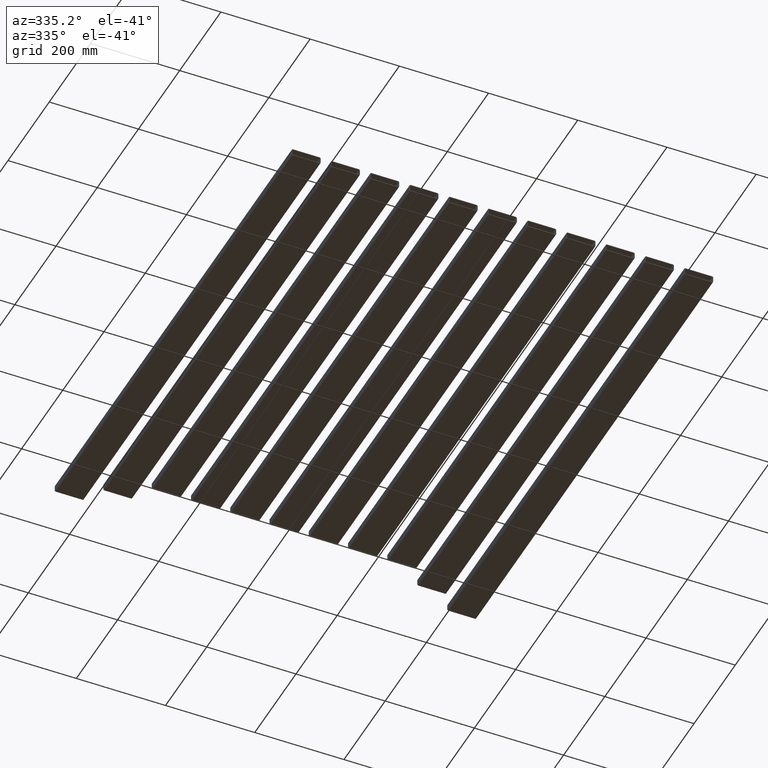
[diagram: clean part render]
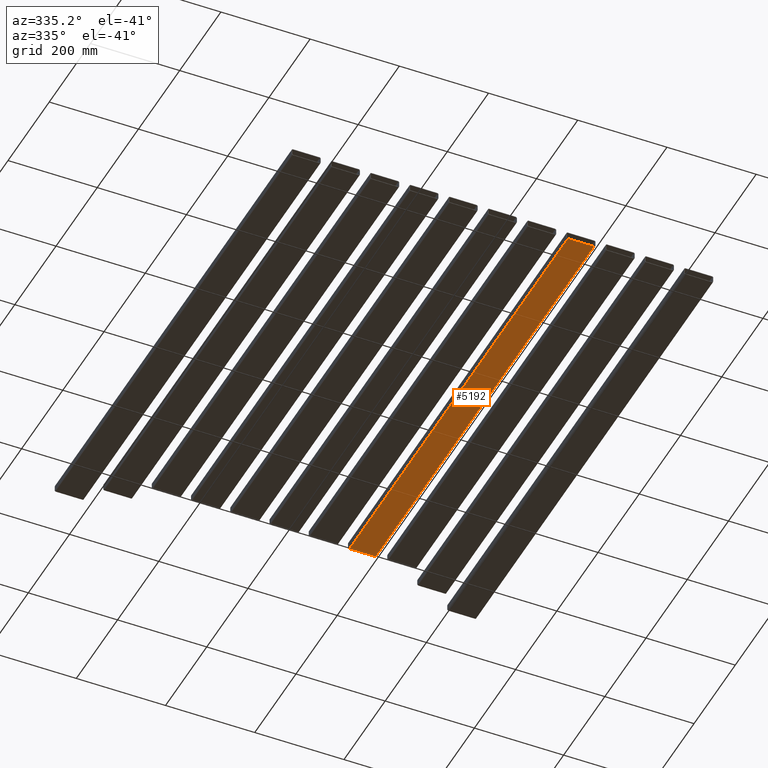
[diagram: same view with one face highlighted and labeled with its STEP entity id]
A machine part, auxiliary view. The second image highlights one B-rep face of the part: STEP entity #5192.
In plain terms, the highlighted planar face has unit normal (-0, -0, 1).
Its self-contained STEP definition (entity closure, byte-faithful):
#145 = EDGE_CURVE ( 'NONE', #630, #3541, #1733, .T. ) ;
#564 = EDGE_CURVE ( 'NONE', #3072, #630, #1788, .T. ) ;
#630 = VERTEX_POINT ( 'NONE', #5159 ) ;
#862 = CARTESIAN_POINT ( 'NONE',  ( 205.4999999999999716, -634.9999999999998863, -7.999999999999897859 ) ) ;
#1115 = VECTOR ( 'NONE', #5944, 1000.000000000000000 ) ;
#1305 = ORIENTED_EDGE ( 'NONE', *, *, #145, .T. ) ;
#1697 = DIRECTION ( 'NONE',  ( 1.000000000000000000, 7.766383260665231975E-35, 0.000000000000000000 ) ) ;
#1733 = LINE ( 'NONE', #3630, #2122 ) ;
#1788 = LINE ( 'NONE', #3314, #2851 ) ;
#1927 = VECTOR ( 'NONE', #5923, 1000.000000000000000 ) ;
#2070 = LINE ( 'NONE', #3987, #1927 ) ;
#2122 = VECTOR ( 'NONE', #1697, 1000.000000000000000 ) ;
#2271 = CARTESIAN_POINT ( 'NONE',  ( 146.4999999999999716, -634.9999999999998863, -8.000000000000113687 ) ) ;
#2329 = CARTESIAN_POINT ( 'NONE',  ( 146.4999999999999716, -634.9999999999998863, -8.000000000000113687 ) ) ;
#2668 = EDGE_CURVE ( 'NONE', #5286, #3541, #4005, .T. ) ;
#2783 = PLANE ( 'NONE',  #4421 ) ;
#2851 = VECTOR ( 'NONE', #2871, 1000.000000000000000 ) ;
#2871 = DIRECTION ( 'NONE',  ( -9.654113257610057838E-17, 1.000000000000000000, 1.203706215242022408E-35 ) ) ;
#3072 = VERTEX_POINT ( 'NONE', #2329 ) ;
#3314 = CARTESIAN_POINT ( 'NONE',  ( 146.4999999999999716, -634.9999999999998863, -8.000000000000113687 ) ) ;
#3518 = EDGE_CURVE ( 'NONE', #3072, #5286, #2070, .T. ) ;
#3541 = VERTEX_POINT ( 'NONE', #6048 ) ;
#3629 = DIRECTION ( 'NONE',  ( -3.645859508832611815E-15, -3.519636973367673521E-31, 1.000000000000000000 ) ) ;
#3630 = CARTESIAN_POINT ( 'NONE',  ( -296.4999999999998863, 425.0000000000000568, -8.000000000000113687 ) ) ;
#3972 = ORIENTED_EDGE ( 'NONE', *, *, #2668, .F. ) ;
#3987 = CARTESIAN_POINT ( 'NONE',  ( 146.4999999999999716, -634.9999999999998863, -8.000000000000113687 ) ) ;
#4005 = LINE ( 'NONE', #4989, #1115 ) ;
#4421 = AXIS2_PLACEMENT_3D ( 'NONE', #2271, #3629, #5716 ) ;
#4989 = CARTESIAN_POINT ( 'NONE',  ( 205.4999999999999716, -634.9999999999998863, -7.999999999999897859 ) ) ;
#5159 = CARTESIAN_POINT ( 'NONE',  ( 146.4999999999998579, 425.0000000000000568, -8.000000000000113687 ) ) ;
#5192 = ADVANCED_FACE ( 'NONE', ( #5204 ), #2783, .F. ) ;
#5204 = FACE_OUTER_BOUND ( 'NONE', #5781, .T. ) ;
#5286 = VERTEX_POINT ( 'NONE', #862 ) ;
#5716 = DIRECTION ( 'NONE',  ( 1.000000000000000000, 4.095961270728429203E-34, 3.645859508832611815E-15 ) ) ;
#5781 = EDGE_LOOP ( 'NONE', ( #6198, #1305, #3972, #6153 ) ) ;
#5923 = DIRECTION ( 'NONE',  ( 1.000000000000000000, 4.095961270728429203E-34, 3.645859508832611815E-15 ) ) ;
#5944 = DIRECTION ( 'NONE',  ( -9.654113257610057838E-17, 1.000000000000000000, 1.203706215242022408E-35 ) ) ;
#6048 = CARTESIAN_POINT ( 'NONE',  ( 205.4999999999999147, 425.0000000000000568, -8.000000000000113687 ) ) ;
#6153 = ORIENTED_EDGE ( 'NONE', *, *, #3518, .F. ) ;
#6198 = ORIENTED_EDGE ( 'NONE', *, *, #564, .T. ) ;